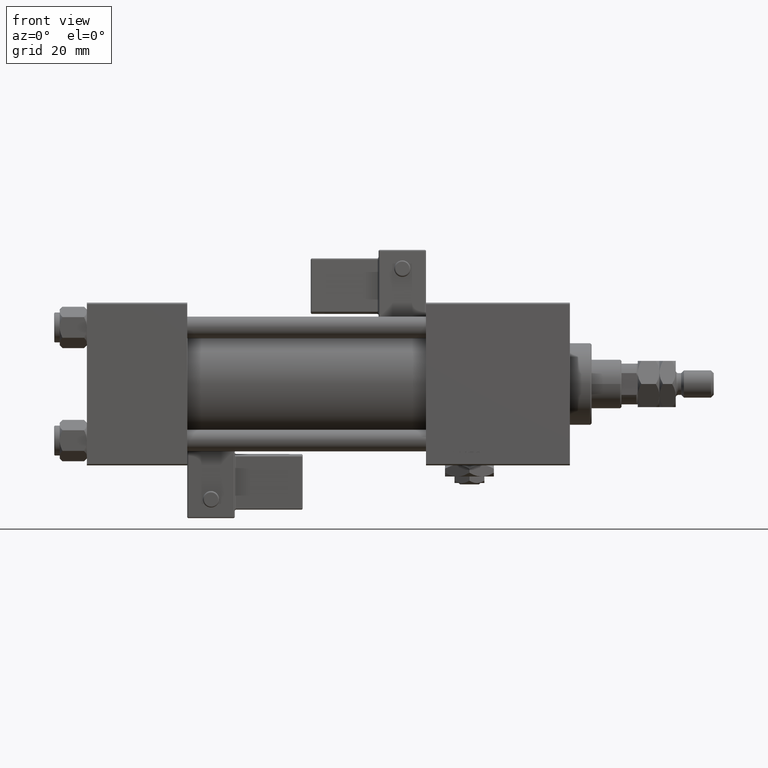
[diagram: clean part render]
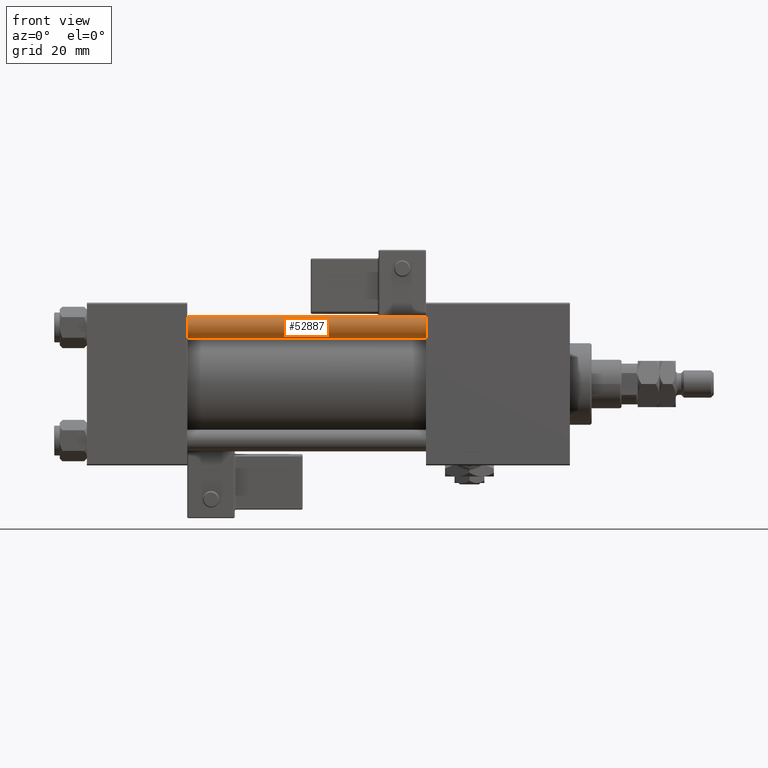
[diagram: same view with one face highlighted and labeled with its STEP entity id]
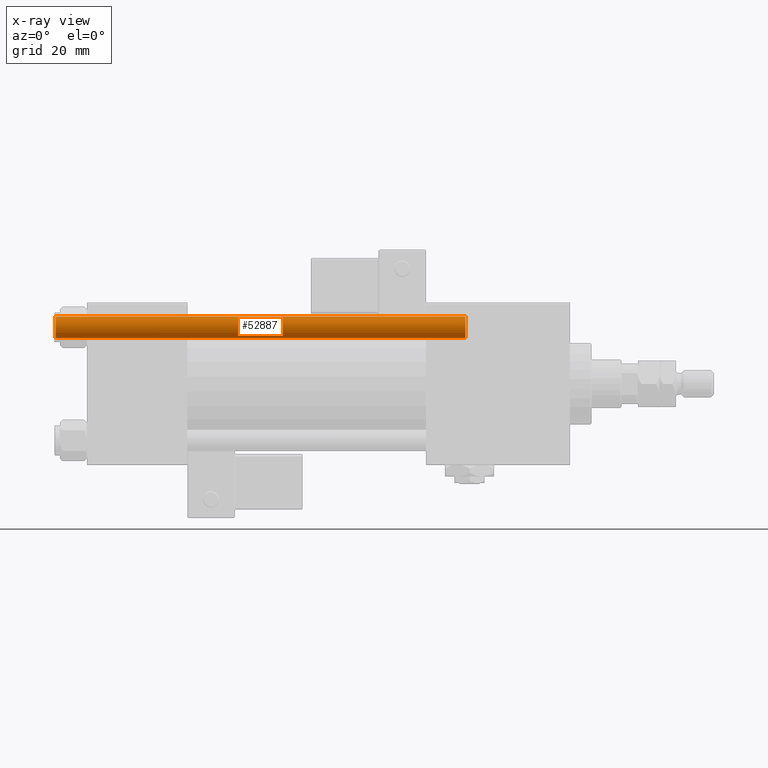
[diagram: x-ray of the same camera — body ghosted, the highlighted face saturated]
A machine part, front view. The second image highlights one B-rep face of the part: STEP entity #52887.
The next image is the same camera in x-ray: the body ghosted, the highlighted face saturated — about 0% of this face is hidden behind the body in this view.
In plain terms, the highlighted cylindrical surface (edge-blend (fillet) strip) has radius 4 mm, axis along (1, 0, -0).
Its self-contained STEP definition (entity closure, byte-faithful):
#549 = DIRECTION ( 'NONE',  ( -0.000000000000000000, -0.000000000000000000, 1.000000000000000000 ) ) ;
#2147 = EDGE_CURVE ( 'NONE', #44606, #22843, #36349, .T. ) ;
#2650 = DIRECTION ( 'NONE',  ( -0.000000000000000000, -0.000000000000000000, -1.000000000000000000 ) ) ;
#3758 = EDGE_CURVE ( 'NONE', #28598, #44606, #35896, .T. ) ;
#4683 = AXIS2_PLACEMENT_3D ( 'NONE', #49678, #2650, #11084 ) ;
#5439 = LINE ( 'NONE', #52198, #41887 ) ;
#9790 = CARTESIAN_POINT ( 'NONE',  ( 0.000000000000000000, 0.000000000000000000, 0.5000000000000281997 ) ) ;
#10924 = ORIENTED_EDGE ( 'NONE', *, *, #38533, .F. ) ;
#11084 = DIRECTION ( 'NONE',  ( -1.000000000000000000, 0.000000000000000000, 0.000000000000000000 ) ) ;
#13562 = ORIENTED_EDGE ( 'NONE', *, *, #18357, .T. ) ;
#13654 = CARTESIAN_POINT ( 'NONE',  ( 4.000000000000000000, 4.898587196589412829E-16, 152.0000000000000000 ) ) ;
#13822 = CARTESIAN_POINT ( 'NONE',  ( 4.000000000000000000, 4.898587196589412829E-16, 151.5000000000000284 ) ) ;
#14206 = DIRECTION ( 'NONE',  ( -0.000000000000000000, -0.000000000000000000, -1.000000000000000000 ) ) ;
#15876 = CYLINDRICAL_SURFACE ( 'NONE', #4683, 4.000000000000000000 ) ;
#16565 = AXIS2_PLACEMENT_3D ( 'NONE', #9790, #549, #38837 ) ;
#18357 = EDGE_CURVE ( 'NONE', #48284, #28598, #49472, .T. ) ;
#18730 = DIRECTION ( 'NONE',  ( 0.000000000000000000, 0.000000000000000000, -1.000000000000000000 ) ) ;
#19822 = FACE_OUTER_BOUND ( 'NONE', #44130, .T. ) ;
#22843 = VERTEX_POINT ( 'NONE', #43853 ) ;
#28598 = VERTEX_POINT ( 'NONE', #13822 ) ;
#30508 = DIRECTION ( 'NONE',  ( -0.000000000000000000, -0.000000000000000000, -1.000000000000000000 ) ) ;
#31679 = DIRECTION ( 'NONE',  ( 1.000000000000000000, 0.000000000000000000, 0.000000000000000000 ) ) ;
#35647 = CARTESIAN_POINT ( 'NONE',  ( 0.000000000000000000, 0.000000000000000000, 151.5000000000000284 ) ) ;
#35896 = LINE ( 'NONE', #13654, #39126 ) ;
#36349 = CIRCLE ( 'NONE', #16565, 4.000000000000000000 ) ;
#38533 = EDGE_CURVE ( 'NONE', #48284, #22843, #5439, .T. ) ;
#38837 = DIRECTION ( 'NONE',  ( 1.000000000000000000, 0.000000000000000000, 0.000000000000000000 ) ) ;
#39126 = VECTOR ( 'NONE', #14206, 1000.000000000000000 ) ;
#39671 = ORIENTED_EDGE ( 'NONE', *, *, #3758, .T. ) ;
#41887 = VECTOR ( 'NONE', #30508, 1000.000000000000000 ) ;
#43853 = CARTESIAN_POINT ( 'NONE',  ( -4.000000000000000000, 0.000000000000000000, 0.5000000000000281997 ) ) ;
#44088 = AXIS2_PLACEMENT_3D ( 'NONE', #35647, #18730, #31679 ) ;
#44130 = EDGE_LOOP ( 'NONE', ( #13562, #39671, #49719, #10924 ) ) ;
#44606 = VERTEX_POINT ( 'NONE', #44876 ) ;
#44876 = CARTESIAN_POINT ( 'NONE',  ( 4.000000000000000000, 4.898587196589412829E-16, 0.5000000000000281997 ) ) ;
#48284 = VERTEX_POINT ( 'NONE', #55486 ) ;
#49472 = CIRCLE ( 'NONE', #44088, 4.000000000000000000 ) ;
#49678 = CARTESIAN_POINT ( 'NONE',  ( 0.000000000000000000, 0.000000000000000000, 152.0000000000000000 ) ) ;
#49719 = ORIENTED_EDGE ( 'NONE', *, *, #2147, .T. ) ;
#52198 = CARTESIAN_POINT ( 'NONE',  ( -4.000000000000000000, 0.000000000000000000, 152.0000000000000000 ) ) ;
#52887 = ADVANCED_FACE ( 'NONE', ( #19822 ), #15876, .T. ) ;
#55486 = CARTESIAN_POINT ( 'NONE',  ( -4.000000000000000000, 0.000000000000000000, 151.5000000000000284 ) ) ;